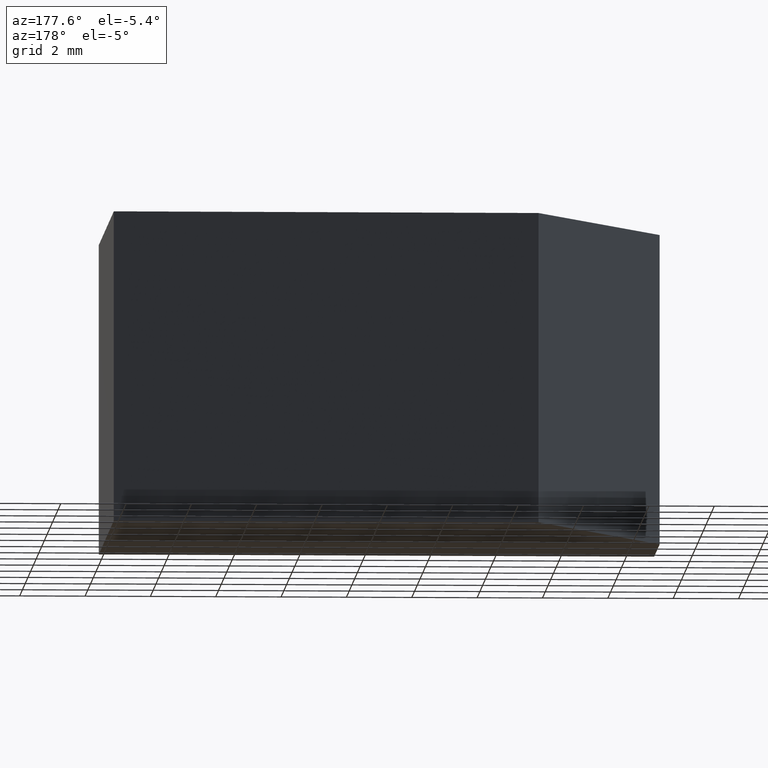
[diagram: clean part render]
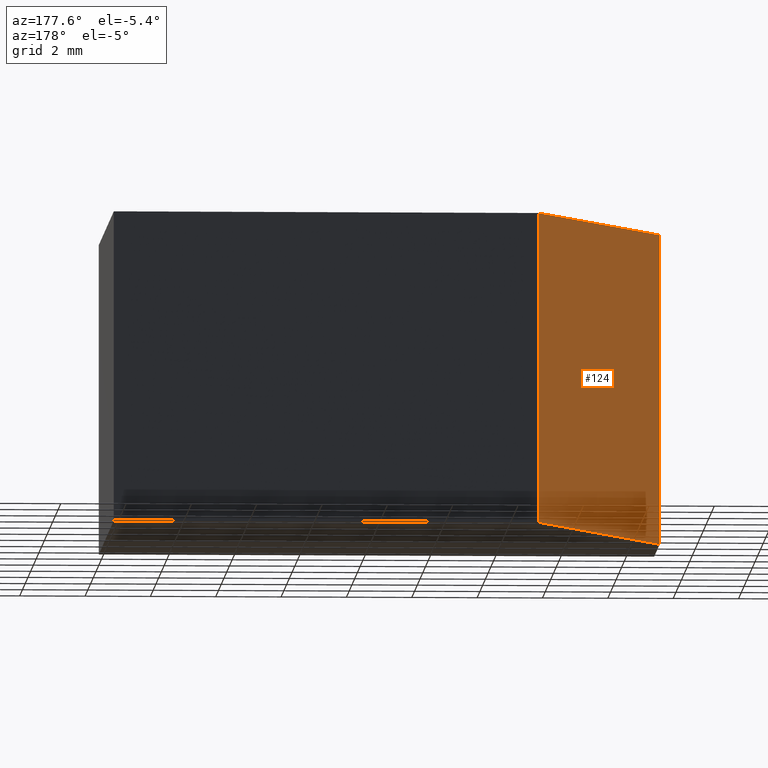
[diagram: same view with one face highlighted and labeled with its STEP entity id]
A machine part, auxiliary view. The second image highlights one B-rep face of the part: STEP entity #124.
In plain terms, the highlighted planar face has unit normal (-0.8682, 0.4961, 0).
Its self-contained STEP definition (entity closure, byte-faithful):
#18=FACE_OUTER_BOUND('',#25,.T.);
#25=EDGE_LOOP('',(#97,#98,#99,#100));
#33=LINE('',#200,#48);
#38=LINE('',#210,#53);
#39=LINE('',#213,#54);
#40=LINE('',#214,#55);
#48=VECTOR('',#166,10.);
#53=VECTOR('',#175,10.);
#54=VECTOR('',#178,10.);
#55=VECTOR('',#179,10.);
#60=VERTEX_POINT('',#192);
#63=VERTEX_POINT('',#198);
#66=VERTEX_POINT('',#208);
#67=VERTEX_POINT('',#212);
#73=EDGE_CURVE('',#60,#63,#33,.T.);
#78=EDGE_CURVE('',#66,#63,#38,.T.);
#79=EDGE_CURVE('',#66,#67,#39,.T.);
#80=EDGE_CURVE('',#67,#60,#40,.T.);
#97=ORIENTED_EDGE('',*,*,#79,.T.);
#98=ORIENTED_EDGE('',*,*,#80,.T.);
#99=ORIENTED_EDGE('',*,*,#73,.T.);
#100=ORIENTED_EDGE('',*,*,#78,.F.);
#117=PLANE('',#154);
#124=ADVANCED_FACE('',(#18),#117,.T.);
#154=AXIS2_PLACEMENT_3D('',#211,#176,#177);
#166=DIRECTION('',(-0.496138938356834,-0.868243142124459,0.));
#175=DIRECTION('',(0.,0.,-1.));
#176=DIRECTION('center_axis',(-0.868243142124459,0.496138938356834,0.));
#177=DIRECTION('ref_axis',(0.,0.,1.));
#178=DIRECTION('',(0.496138938356834,0.868243142124459,0.));
#179=DIRECTION('',(0.,0.,-1.));
#192=CARTESIAN_POINT('',(-13.,11.,-4.75));
#198=CARTESIAN_POINT('',(-17.,4.,-4.75));
#200=CARTESIAN_POINT('',(-17.,4.,-4.75));
#208=CARTESIAN_POINT('',(-17.,4.,4.75));
#210=CARTESIAN_POINT('',(-17.,4.,0.));
#211=CARTESIAN_POINT('Origin',(-17.,4.,0.));
#212=CARTESIAN_POINT('',(-13.,11.,4.75));
#213=CARTESIAN_POINT('',(-17.,4.,4.75));
#214=CARTESIAN_POINT('',(-13.,11.,0.));